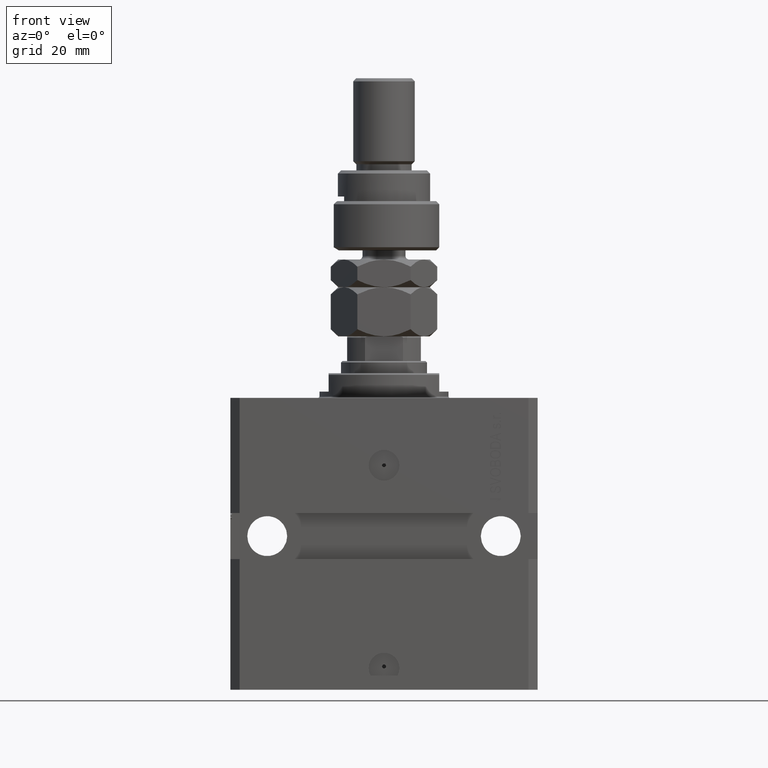
[diagram: clean part render]
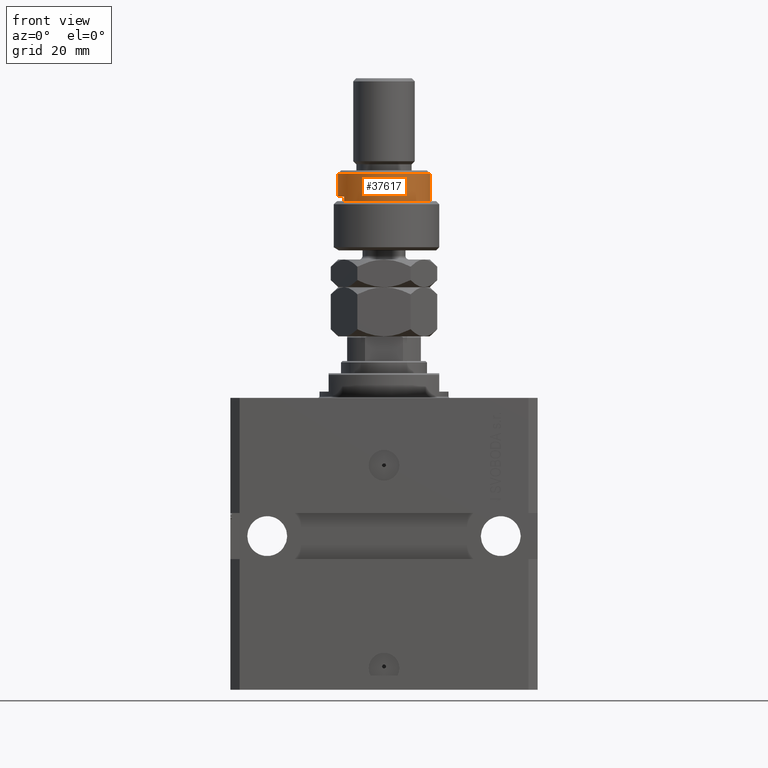
[diagram: same view with one face highlighted and labeled with its STEP entity id]
A machine part, front view. The second image highlights one B-rep face of the part: STEP entity #37617.
In plain terms, the highlighted cylindrical surface (partial cylindrical patch) has radius 15 mm, axis along (-0, -0, -1).
Its self-contained STEP definition (entity closure, byte-faithful):
#457 = VECTOR ( 'NONE', #31873, 1000.000000000000000 ) ;
#465 = ORIENTED_EDGE ( 'NONE', *, *, #45317, .F. ) ;
#1413 = LINE ( 'NONE', #48378, #457 ) ;
#2603 = CARTESIAN_POINT ( 'NONE',  ( -12.99038105676658006, -7.500000000000000000, 26.00000000000000355 ) ) ;
#3036 = CYLINDRICAL_SURFACE ( 'NONE', #35416, 15.00000000000000000 ) ;
#3282 = FACE_OUTER_BOUND ( 'NONE', #3824, .T. ) ;
#3544 = AXIS2_PLACEMENT_3D ( 'NONE', #17718, #14079, #29807 ) ;
#3824 = EDGE_LOOP ( 'NONE', ( #28867, #19754, #27869, #465, #47524, #27580 ) ) ;
#4368 = CARTESIAN_POINT ( 'NONE',  ( 15.00000000000000000, 1.836970198721029589E-15, 16.00000000000000000 ) ) ;
#6446 = CARTESIAN_POINT ( 'NONE',  ( 0.000000000000000000, 0.000000000000000000, 16.00000000000000000 ) ) ;
#7396 = DIRECTION ( 'NONE',  ( -0.000000000000000000, -0.000000000000000000, -1.000000000000000000 ) ) ;
#7401 = EDGE_CURVE ( 'NONE', #34526, #17111, #1413, .T. ) ;
#7516 = AXIS2_PLACEMENT_3D ( 'NONE', #28953, #44711, #10618 ) ;
#10618 = DIRECTION ( 'NONE',  ( 1.000000000000000000, 0.000000000000000000, 0.000000000000000000 ) ) ;
#11210 = VERTEX_POINT ( 'NONE', #42144 ) ;
#11786 = CARTESIAN_POINT ( 'NONE',  ( 0.000000000000000000, 0.000000000000000000, 26.00000000000000355 ) ) ;
#12629 = VERTEX_POINT ( 'NONE', #28711 ) ;
#13956 = DIRECTION ( 'NONE',  ( -0.000000000000000000, -0.000000000000000000, -1.000000000000000000 ) ) ;
#14079 = DIRECTION ( 'NONE',  ( 0.000000000000000000, 0.000000000000000000, -1.000000000000000000 ) ) ;
#17111 = VERTEX_POINT ( 'NONE', #4368 ) ;
#17718 = CARTESIAN_POINT ( 'NONE',  ( 0.000000000000000000, 0.000000000000000000, 17.50000000000000000 ) ) ;
#18160 = LINE ( 'NONE', #22026, #43008 ) ;
#19499 = VERTEX_POINT ( 'NONE', #19917 ) ;
#19754 = ORIENTED_EDGE ( 'NONE', *, *, #41953, .T. ) ;
#19917 = CARTESIAN_POINT ( 'NONE',  ( -15.00000000000000000, 0.000000000000000000, 17.50000000000000000 ) ) ;
#22026 = CARTESIAN_POINT ( 'NONE',  ( -15.00000000000000000, 0.000000000000000000, 26.00000000000000355 ) ) ;
#22513 = CIRCLE ( 'NONE', #3544, 15.00000000000000000 ) ;
#22698 = EDGE_CURVE ( 'NONE', #11210, #17111, #32320, .T. ) ;
#24995 = EDGE_CURVE ( 'NONE', #30222, #19499, #18160, .T. ) ;
#27580 = ORIENTED_EDGE ( 'NONE', *, *, #22698, .T. ) ;
#27724 = EDGE_CURVE ( 'NONE', #12629, #11210, #29438, .T. ) ;
#27869 = ORIENTED_EDGE ( 'NONE', *, *, #24995, .T. ) ;
#28711 = CARTESIAN_POINT ( 'NONE',  ( -12.99038105676658006, -7.500000000000000000, 17.50000000000000000 ) ) ;
#28867 = ORIENTED_EDGE ( 'NONE', *, *, #7401, .F. ) ;
#28953 = CARTESIAN_POINT ( 'NONE',  ( 0.000000000000000000, 0.000000000000000000, 24.99999999999997868 ) ) ;
#29421 = DIRECTION ( 'NONE',  ( 1.000000000000000000, 0.000000000000000000, 0.000000000000000000 ) ) ;
#29438 = LINE ( 'NONE', #2603, #50510 ) ;
#29807 = DIRECTION ( 'NONE',  ( -1.000000000000000000, 0.000000000000000000, 0.000000000000000000 ) ) ;
#30222 = VERTEX_POINT ( 'NONE', #45370 ) ;
#30793 = DIRECTION ( 'NONE',  ( -0.000000000000000000, -0.000000000000000000, -1.000000000000000000 ) ) ;
#31873 = DIRECTION ( 'NONE',  ( -0.000000000000000000, -0.000000000000000000, -1.000000000000000000 ) ) ;
#32320 = CIRCLE ( 'NONE', #36452, 15.00000000000000000 ) ;
#34526 = VERTEX_POINT ( 'NONE', #37776 ) ;
#35416 = AXIS2_PLACEMENT_3D ( 'NONE', #11786, #7396, #46370 ) ;
#36452 = AXIS2_PLACEMENT_3D ( 'NONE', #6446, #38440, #29421 ) ;
#37617 = ADVANCED_FACE ( 'NONE', ( #3282 ), #3036, .T. ) ;
#37776 = CARTESIAN_POINT ( 'NONE',  ( 15.00000000000000000, 1.836970198721029589E-15, 24.99999999999997868 ) ) ;
#38440 = DIRECTION ( 'NONE',  ( 0.000000000000000000, 0.000000000000000000, 1.000000000000000000 ) ) ;
#41953 = EDGE_CURVE ( 'NONE', #34526, #30222, #47891, .T. ) ;
#42144 = CARTESIAN_POINT ( 'NONE',  ( -12.99038105676658006, -7.500000000000000000, 16.00000000000000000 ) ) ;
#43008 = VECTOR ( 'NONE', #30793, 1000.000000000000000 ) ;
#44711 = DIRECTION ( 'NONE',  ( 0.000000000000000000, 0.000000000000000000, -1.000000000000000000 ) ) ;
#45317 = EDGE_CURVE ( 'NONE', #12629, #19499, #22513, .T. ) ;
#45370 = CARTESIAN_POINT ( 'NONE',  ( -15.00000000000000000, 0.000000000000000000, 24.99999999999997868 ) ) ;
#46370 = DIRECTION ( 'NONE',  ( -1.000000000000000000, 0.000000000000000000, 0.000000000000000000 ) ) ;
#47524 = ORIENTED_EDGE ( 'NONE', *, *, #27724, .T. ) ;
#47891 = CIRCLE ( 'NONE', #7516, 15.00000000000000000 ) ;
#48378 = CARTESIAN_POINT ( 'NONE',  ( 15.00000000000000000, 1.836970198721029589E-15, 26.00000000000000355 ) ) ;
#50510 = VECTOR ( 'NONE', #13956, 1000.000000000000000 ) ;